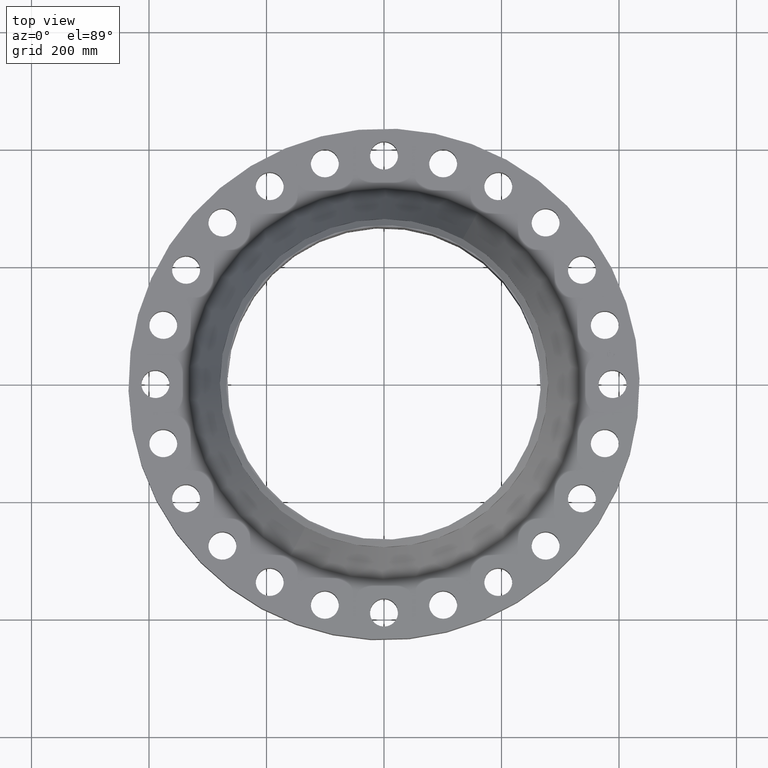
[diagram: clean part render]
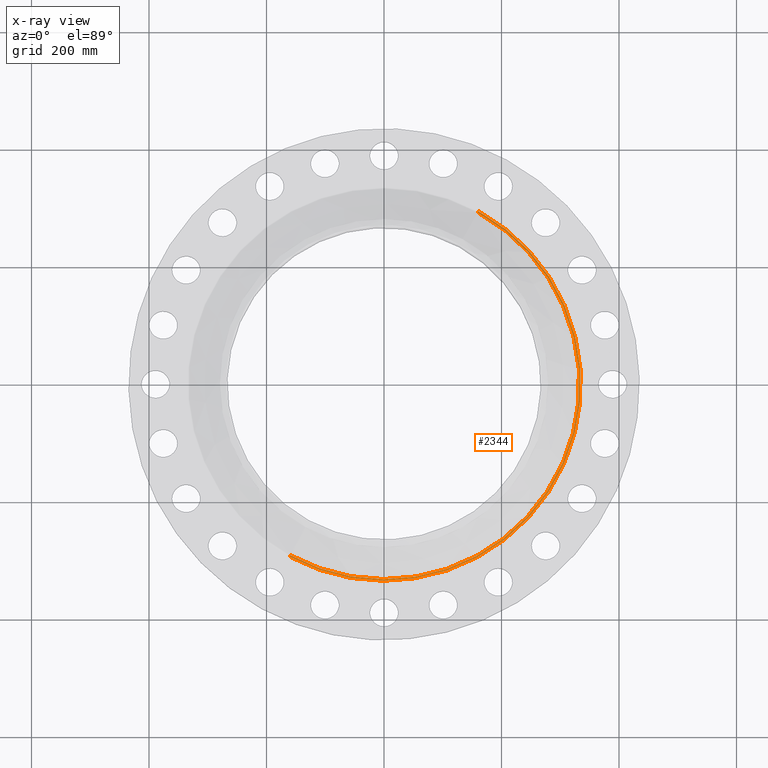
[diagram: x-ray — body ghosted, one internal face saturated and labeled with its STEP entity id]
A machine part, top view, then the same camera in x-ray: the body is ghosted and one INTERNAL B-rep face — a face not visible from any outside direction — is saturated and labeled: STEP entity #2344.
In plain terms, the highlighted toroidal blend (fillet) surface has major radius 335.075 mm and minor (blend) radius 3.048 mm.
Its self-contained STEP definition (entity closure, byte-faithful):
#629=AXIS2_PLACEMENT_3D('Circle Axis2P3D',#627,#628,$) ;
#2297=AXIS2_PLACEMENT_3D('Circle Axis2P3D',#2295,#2296,$) ;
#2311=AXIS2_PLACEMENT_3D('Circle Axis2P3D',#2309,#2310,$) ;
#2331=AXIS2_PLACEMENT_3D('Torus Axis2P3D',#2328,#2329,#2330) ;
#2335=AXIS2_PLACEMENT_3D('Circle Axis2P3D',#2333,#2334,$) ;
#622=CARTESIAN_POINT('Vertex',(-6.32454671418,-11.5770051058,3.75000000002)) ;
#624=CARTESIAN_POINT('Vertex',(6.32454671423,11.5770051058,3.75000000002)) ;
#627=CARTESIAN_POINT('Axis2P3D Location',(1.28099106126E-011,-2.33192293122E-012,3.75000000002)) ;
#2295=CARTESIAN_POINT('Axis2P3D Location',(-6.32454671421,-11.5770051057,3.87000000002)) ;
#2299=CARTESIAN_POINT('Vertex',(-6.2755991667,-11.487407221,3.80694164096)) ;
#2306=CARTESIAN_POINT('Vertex',(6.27559916672,11.487407221,3.80694164094)) ;
#2309=CARTESIAN_POINT('Axis2P3D Location',(6.32454671421,11.5770051057,3.87000000002)) ;
#2328=CARTESIAN_POINT('Axis2P3D Location',(0.,0.,3.87000000002)) ;
#2333=CARTESIAN_POINT('Axis2P3D Location',(0.,0.,3.80694164094)) ;
#628=DIRECTION('Axis2P3D Direction',(0.,0.,-0.0393700787402)) ;
#2296=DIRECTION('Axis2P3D Direction',(0.0345504945626,-0.0188750212049,0.)) ;
#2310=DIRECTION('Axis2P3D Direction',(-0.0345504945626,0.0188750212049,0.)) ;
#2329=DIRECTION('Axis2P3D Direction',(0.,0.,-0.0393700787402)) ;
#2330=DIRECTION('Axis2P3D XDirection',(0.0188750212049,0.0345504945626,0.)) ;
#2334=DIRECTION('Axis2P3D Direction',(-0.,0.,-0.0393700787402)) ;
#2339=ORIENTED_EDGE('',*,*,#631,.F.) ;
#2340=ORIENTED_EDGE('',*,*,#2313,.T.) ;
#2341=ORIENTED_EDGE('',*,*,#2337,.T.) ;
#2342=ORIENTED_EDGE('',*,*,#2301,.F.) ;
#2344=ADVANCED_FACE('PartBody',(#2343),#2332,.F.) ;
#630=CIRCLE('generated circle',#629,13.1919270146) ;
#2298=CIRCLE('generated circle',#2297,0.12) ;
#2312=CIRCLE('generated circle',#2311,0.12) ;
#2336=CIRCLE('generated circle',#2335,13.0898307691) ;
#2332=TOROIDAL_SURFACE('homeo Torus',#2331,13.1919270146,0.12) ;
#631=EDGE_CURVE('',#625,#623,#630,.T.) ;
#2301=EDGE_CURVE('',#623,#2300,#2298,.T.) ;
#2313=EDGE_CURVE('',#625,#2307,#2312,.T.) ;
#2337=EDGE_CURVE('',#2307,#2300,#2336,.T.) ;
#2338=EDGE_LOOP('',(#2339,#2340,#2341,#2342)) ;
#2343=FACE_OUTER_BOUND('',#2338,.T.) ;
#623=VERTEX_POINT('',#622) ;
#625=VERTEX_POINT('',#624) ;
#2300=VERTEX_POINT('',#2299) ;
#2307=VERTEX_POINT('',#2306) ;